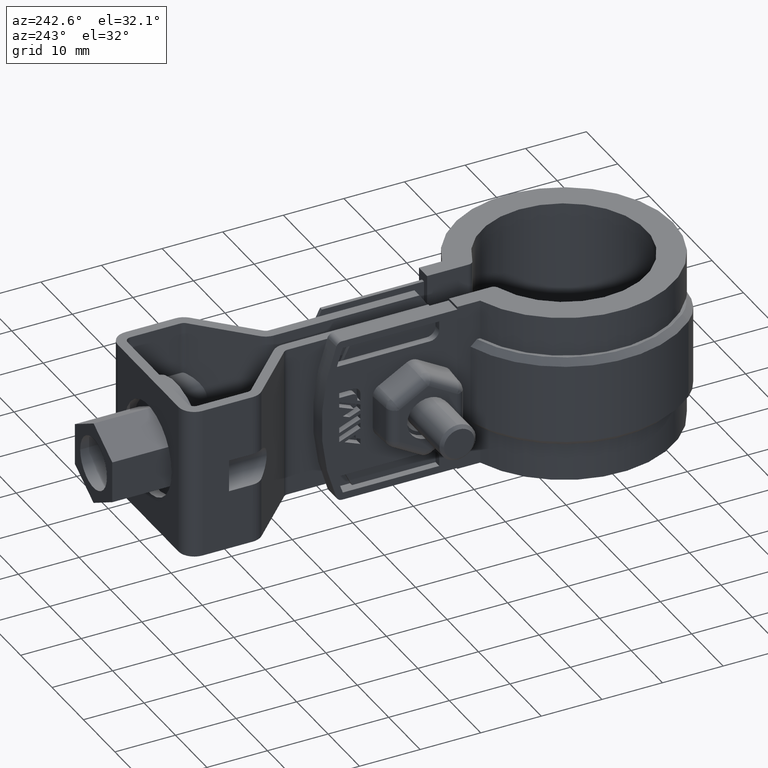
[diagram: clean part render]
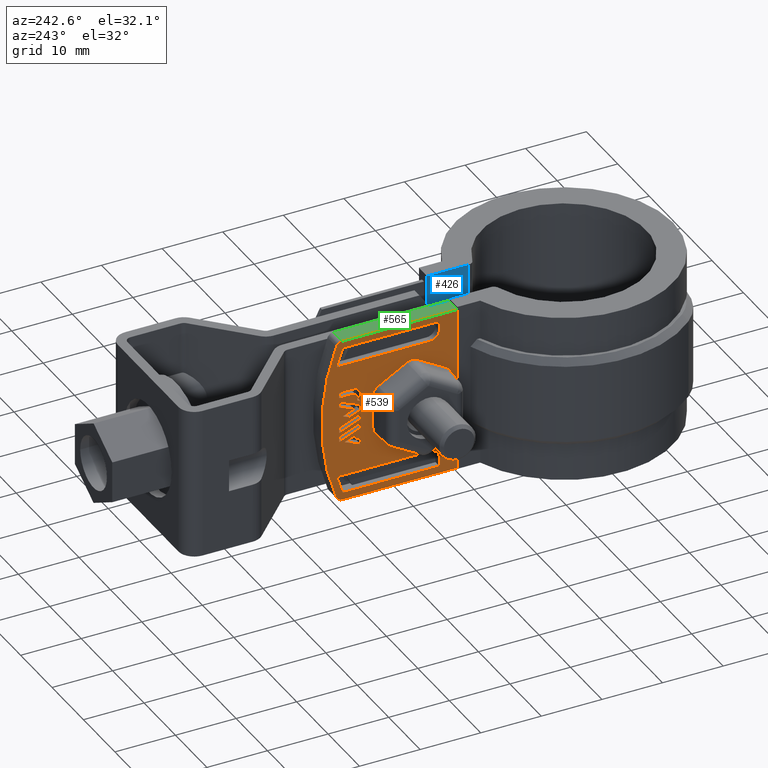
[diagram: same view with three faces highlighted in distinct colors, each labeled with its STEP entity id]
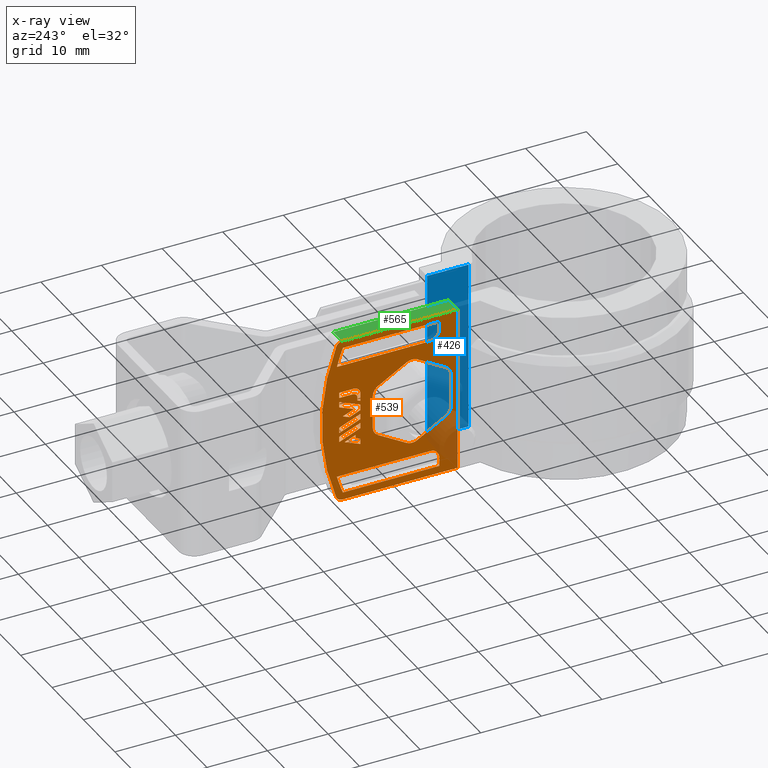
[diagram: x-ray of the same camera — body ghosted, the three highlighted faces saturated]
A machine part, auxiliary view with three faces highlighted in distinct colors.
The next image is the same camera in x-ray (body ghosted, the three faces saturated) — at least one of them is partly hidden behind the body in this view.
Their STEP definitions:

[orange] entity #539 — the highlighted planar face has unit normal (-1, 0, -0).
#539 = ADVANCED_FACE( '', ( #1070, #1071, #1072, #1073, #1074, #1075, #1076, #1077, #1078 ), #1079, .T. );
#1070 = FACE_BOUND( '', #2151, .T. );
#1071 = FACE_BOUND( '', #2152, .T. );
#1072 = FACE_BOUND( '', #2153, .T. );
#1073 = FACE_OUTER_BOUND( '', #2154, .T. );
#1074 = FACE_BOUND( '', #2155, .T. );
#1075 = FACE_BOUND( '', #2156, .T. );
#1076 = FACE_BOUND( '', #2157, .T. );
#1077 = FACE_BOUND( '', #2158, .T. );
#1078 = FACE_BOUND( '', #2159, .T. );
#1079 = PLANE( '', #2160 );
#2151 = EDGE_LOOP( '', ( #4816, #4817, #4818, #4819, #4820 ) );
#2152 = EDGE_LOOP( '', ( #4821, #4822, #4823, #4824 ) );
#2153 = EDGE_LOOP( '', ( #4825, #4826, #4827, #4828, #4829, #4830, #4831, #4832, #4833, #4834, #4835, #4836 ) );
#2154 = EDGE_LOOP( '', ( #4837, #4838, #4839, #4840, #4841, #4842 ) );
#2155 = EDGE_LOOP( '', ( #4843, #4844, #4845, #4846, #4847 ) );
#2156 = EDGE_LOOP( '', ( #4848, #4849, #4850, #4851, #4852 ) );
#2157 = EDGE_LOOP( '', ( #4853, #4854, #4855, #4856, #4857, #4858, #4859, #4860, #4861, #4862, #4863, #4864, #4865, #4866, #4867, #4868, #4869, #4870, #4871, #4872, #4873, #4874, #4875, #4876, #4877, #4878, #4879, #4880, #4881, #4882, #4883, #4884, #4885, #4886, #4887, #4888, #4889, #4890, #4891, #4892 ) );
#2158 = EDGE_LOOP( '', ( #4893, #4894, #4895, #4896, #4897, #4898, #4899 ) );
#2159 = EDGE_LOOP( '', ( #4900, #4901, #4902, #4903 ) );
#2160 = AXIS2_PLACEMENT_3D( '', #4904, #4905, #4906 );
#4816 = ORIENTED_EDGE( '', *, *, #6562, .T. );
#4817 = ORIENTED_EDGE( '', *, *, #6563, .T. );
#4818 = ORIENTED_EDGE( '', *, *, #6564, .T. );
#4819 = ORIENTED_EDGE( '', *, *, #6565, .T. );
#4820 = ORIENTED_EDGE( '', *, *, #6566, .T. );
#4821 = ORIENTED_EDGE( '', *, *, #6567, .T. );
#4822 = ORIENTED_EDGE( '', *, *, #6568, .T. );
#4823 = ORIENTED_EDGE( '', *, *, #6569, .T. );
#4824 = ORIENTED_EDGE( '', *, *, #6570, .T. );
#4825 = ORIENTED_EDGE( '', *, *, #6571, .F. );
#4826 = ORIENTED_EDGE( '', *, *, #6572, .F. );
#4827 = ORIENTED_EDGE( '', *, *, #6573, .F. );
#4828 = ORIENTED_EDGE( '', *, *, #6574, .F. );
#4829 = ORIENTED_EDGE( '', *, *, #6575, .F. );
#4830 = ORIENTED_EDGE( '', *, *, #6576, .F. );
#4831 = ORIENTED_EDGE( '', *, *, #6577, .F. );
#4832 = ORIENTED_EDGE( '', *, *, #6578, .F. );
#4833 = ORIENTED_EDGE( '', *, *, #6579, .F. );
#4834 = ORIENTED_EDGE( '', *, *, #6580, .F. );
#4835 = ORIENTED_EDGE( '', *, *, #6581, .F. );
#4836 = ORIENTED_EDGE( '', *, *, #6582, .F. );
#4837 = ORIENTED_EDGE( '', *, *, #6583, .T. );
#4838 = ORIENTED_EDGE( '', *, *, #6584, .T. );
#4839 = ORIENTED_EDGE( '', *, *, #6585, .T. );
#4840 = ORIENTED_EDGE( '', *, *, #6586, .T. );
#4841 = ORIENTED_EDGE( '', *, *, #6587, .T. );
#4842 = ORIENTED_EDGE( '', *, *, #6588, .T. );
#4843 = ORIENTED_EDGE( '', *, *, #6589, .F. );
#4844 = ORIENTED_EDGE( '', *, *, #6590, .T. );
#4845 = ORIENTED_EDGE( '', *, *, #6591, .T. );
#4846 = ORIENTED_EDGE( '', *, *, #6592, .T. );
#4847 = ORIENTED_EDGE( '', *, *, #6593, .F. );
#4848 = ORIENTED_EDGE( '', *, *, #6594, .F. );
#4849 = ORIENTED_EDGE( '', *, *, #6595, .F. );
#4850 = ORIENTED_EDGE( '', *, *, #6596, .T. );
#4851 = ORIENTED_EDGE( '', *, *, #6597, .T. );
#4852 = ORIENTED_EDGE( '', *, *, #6598, .T. );
#4853 = ORIENTED_EDGE( '', *, *, #6599, .T. );
#4854 = ORIENTED_EDGE( '', *, *, #6600, .T. );
#4855 = ORIENTED_EDGE( '', *, *, #6601, .T. );
#4856 = ORIENTED_EDGE( '', *, *, #6602, .T. );
#4857 = ORIENTED_EDGE( '', *, *, #6603, .T. );
#4858 = ORIENTED_EDGE( '', *, *, #6604, .T. );
#4859 = ORIENTED_EDGE( '', *, *, #6605, .T. );
#4860 = ORIENTED_EDGE( '', *, *, #6606, .T. );
#4861 = ORIENTED_EDGE( '', *, *, #6607, .T. );
#4862 = ORIENTED_EDGE( '', *, *, #6608, .T. );
#4863 = ORIENTED_EDGE( '', *, *, #6609, .T. );
#4864 = ORIENTED_EDGE( '', *, *, #6610, .T. );
#4865 = ORIENTED_EDGE( '', *, *, #6611, .T. );
#4866 = ORIENTED_EDGE( '', *, *, #6612, .T. );
#4867 = ORIENTED_EDGE( '', *, *, #6613, .T. );
#4868 = ORIENTED_EDGE( '', *, *, #6614, .T. );
#4869 = ORIENTED_EDGE( '', *, *, #6615, .T. );
#4870 = ORIENTED_EDGE( '', *, *, #6616, .T. );
#4871 = ORIENTED_EDGE( '', *, *, #6617, .T. );
#4872 = ORIENTED_EDGE( '', *, *, #6618, .T. );
#4873 = ORIENTED_EDGE( '', *, *, #6619, .T. );
#4874 = ORIENTED_EDGE( '', *, *, #6620, .T. );
#4875 = ORIENTED_EDGE( '', *, *, #6621, .T. );
#4876 = ORIENTED_EDGE( '', *, *, #6622, .T. );
#4877 = ORIENTED_EDGE( '', *, *, #6623, .T. );
#4878 = ORIENTED_EDGE( '', *, *, #6624, .T. );
#4879 = ORIENTED_EDGE( '', *, *, #6625, .T. );
#4880 = ORIENTED_EDGE( '', *, *, #6626, .T. );
#4881 = ORIENTED_EDGE( '', *, *, #6627, .T. );
#4882 = ORIENTED_EDGE( '', *, *, #6628, .T. );
#4883 = ORIENTED_EDGE( '', *, *, #6629, .T. );
#4884 = ORIENTED_EDGE( '', *, *, #6630, .T. );
#4885 = ORIENTED_EDGE( '', *, *, #6631, .T. );
#4886 = ORIENTED_EDGE( '', *, *, #6632, .T. );
#4887 = ORIENTED_EDGE( '', *, *, #6633, .T. );
#4888 = ORIENTED_EDGE( '', *, *, #6634, .T. );
#4889 = ORIENTED_EDGE( '', *, *, #6635, .T. );
#4890 = ORIENTED_EDGE( '', *, *, #6636, .T. );
#4891 = ORIENTED_EDGE( '', *, *, #6637, .T. );
#4892 = ORIENTED_EDGE( '', *, *, #6638, .T. );
#4893 = ORIENTED_EDGE( '', *, *, #6639, .T. );
#4894 = ORIENTED_EDGE( '', *, *, #6640, .T. );
#4895 = ORIENTED_EDGE( '', *, *, #6641, .T. );
#4896 = ORIENTED_EDGE( '', *, *, #6642, .T. );
#4897 = ORIENTED_EDGE( '', *, *, #6643, .T. );
#4898 = ORIENTED_EDGE( '', *, *, #6644, .T. );
#4899 = ORIENTED_EDGE( '', *, *, #6645, .T. );
#4900 = ORIENTED_EDGE( '', *, *, #6646, .T. );
#4901 = ORIENTED_EDGE( '', *, *, #6647, .T. );
#4902 = ORIENTED_EDGE( '', *, *, #6558, .T. );
#4903 = ORIENTED_EDGE( '', *, *, #6561, .T. );
#4904 = CARTESIAN_POINT( '', ( -6.30000000000003, 6.82194656581947, -12.5000000000001 ) );
#4905 = DIRECTION( '', ( -1.00000000000000, 7.94615700011737E-017, -6.23565794846549E-020 ) );
#4906 = DIRECTION( '', ( 7.94615700011737E-017, 1.00000000000000, 1.27307474615306E-016 ) );
#6558 = EDGE_CURVE( '', #7891, #7889, #7892, .T. );
#6561 = EDGE_CURVE( '', #7889, #7894, #7896, .T. );
#6562 = EDGE_CURVE( '', #7897, #7898, #7899, .T. );
#6563 = EDGE_CURVE( '', #7898, #7900, #7901, .T. );
#6564 = EDGE_CURVE( '', #7900, #7902, #7903, .T. );
#6565 = EDGE_CURVE( '', #7902, #7904, #7905, .T. );
#6566 = EDGE_CURVE( '', #7904, #7897, #7906, .T. );
#6567 = EDGE_CURVE( '', #7907, #7908, #7909, .T. );
#6568 = EDGE_CURVE( '', #7908, #7910, #7911, .T. );
#6569 = EDGE_CURVE( '', #7910, #7912, #7913, .T. );
#6570 = EDGE_CURVE( '', #7912, #7907, #7914, .T. );
#6571 = EDGE_CURVE( '', #7915, #7916, #7917, .F. );
#6572 = EDGE_CURVE( '', #7918, #7915, #7919, .T. );
#6573 = EDGE_CURVE( '', #7920, #7918, #7921, .F. );
#6574 = EDGE_CURVE( '', #7922, #7920, #7923, .T. );
#6575 = EDGE_CURVE( '', #7924, #7922, #7925, .F. );
#6576 = EDGE_CURVE( '', #7926, #7924, #7927, .T. );
#6577 = EDGE_CURVE( '', #7928, #7926, #7929, .F. );
#6578 = EDGE_CURVE( '', #7930, #7928, #7931, .T. );
#6579 = EDGE_CURVE( '', #7932, #7930, #7933, .F. );
#6580 = EDGE_CURVE( '', #7934, #7932, #7935, .T. );
#6581 = EDGE_CURVE( '', #7936, #7934, #7937, .F. );
#6582 = EDGE_CURVE( '', #7916, #7936, #7938, .T. );
#6583 = EDGE_CURVE( '', #7939, #7940, #7941, .T. );
#6584 = EDGE_CURVE( '', #7940, #7942, #7943, .T. );
#6585 = EDGE_CURVE( '', #7942, #7944, #7945, .T. );
#6586 = EDGE_CURVE( '', #7944, #7946, #7947, .T. );
#6587 = EDGE_CURVE( '', #7946, #7948, #7949, .T. );
#6588 = EDGE_CURVE( '', #7948, #7939, #7950, .T. );
#6589 = EDGE_CURVE( '', #7951, #7952, #7953, .T. );
#6590 = EDGE_CURVE( '', #7951, #7954, #7955, .T. );
#6591 = EDGE_CURVE( '', #7954, #7956, #7957, .T. );
#6592 = EDGE_CURVE( '', #7956, #7958, #7959, .T. );
#6593 = EDGE_CURVE( '', #7952, #7958, #7960, .T. );
#6594 = EDGE_CURVE( '', #7961, #7962, #7963, .T. );
#6595 = EDGE_CURVE( '', #7964, #7961, #7965, .T. );
#6596 = EDGE_CURVE( '', #7964, #7966, #7967, .T. );
#6597 = EDGE_CURVE( '', #7966, #7968, #7969, .T. );
#6598 = EDGE_CURVE( '', #7968, #7962, #7970, .T. );
#6599 = EDGE_CURVE( '', #7971, #7972, #7973, .T. );
#6600 = EDGE_CURVE( '', #7972, #7974, #7975, .T. );
#6601 = EDGE_CURVE( '', #7974, #7976, #7977, .T. );
#6602 = EDGE_CURVE( '', #7976, #7978, #7979, .T. );
#6603 = EDGE_CURVE( '', #7978, #7980, #7981, .T. );
#6604 = EDGE_CURVE( '', #7980, #7982, #7983, .T. );
#6605 = EDGE_CURVE( '', #7982, #7984, #7985, .T. );
#6606 = EDGE_CURVE( '', #7984, #7986, #7987, .T. );
#6607 = EDGE_CURVE( '', #7986, #7988, #7989, .T. );
#6608 = EDGE_CURVE( '', #7988, #7990, #7991, .T. );
#6609 = EDGE_CURVE( '', #7990, #7992, #7993, .T. );
#6610 = EDGE_CURVE( '', #7992, #7994, #7995, .T. );
#6611 = EDGE_CURVE( '', #7994, #7996, #7997, .T. );
#6612 = EDGE_CURVE( '', #7996, #7998, #7999, .T. );
#6613 = EDGE_CURVE( '', #7998, #8000, #8001, .T. );
#6614 = EDGE_CURVE( '', #8000, #8002, #8003, .T. );
#6615 = EDGE_CURVE( '', #8002, #8004, #8005, .T. );
#6616 = EDGE_CURVE( '', #8004, #8006, #8007, .T. );
#6617 = EDGE_CURVE( '', #8006, #8008, #8009, .T. );
#6618 = EDGE_CURVE( '', #8008, #8010, #8011, .T. );
#6619 = EDGE_CURVE( '', #8010, #8012, #8013, .T. );
#6620 = EDGE_CURVE( '', #8012, #8014, #8015, .T. );
#6621 = EDGE_CURVE( '', #8014, #8016, #8017, .T. );
#6622 = EDGE_CURVE( '', #8016, #8018, #8019, .T. );
#6623 = EDGE_CURVE( '', #8018, #8020, #8021, .T. );
#6624 = EDGE_CURVE( '', #8020, #8022, #8023, .T. );
#6625 = EDGE_CURVE( '', #8022, #8024, #8025, .T. );
#6626 = EDGE_CURVE( '', #8024, #8026, #8027, .T. );
#6627 = EDGE_CURVE( '', #8026, #8028, #8029, .T. );
#6628 = EDGE_CURVE( '', #8028, #8030, #8031, .T. );
#6629 = EDGE_CURVE( '', #8030, #8032, #8033, .T. );
#6630 = EDGE_CURVE( '', #8032, #8034, #8035, .T. );
#6631 = EDGE_CURVE( '', #8034, #8036, #8037, .T. );
#6632 = EDGE_CURVE( '', #8036, #8038, #8039, .T. );
#6633 = EDGE_CURVE( '', #8038, #8040, #8041, .T. );
#6634 = EDGE_CURVE( '', #8040, #8042, #8043, .T. );
#6635 = EDGE_CURVE( '', #8042, #8044, #8045, .T. );
#6636 = EDGE_CURVE( '', #8044, #8046, #8047, .T. );
#6637 = EDGE_CURVE( '', #8046, #8048, #8049, .T. );
#6638 = EDGE_CURVE( '', #8048, #7971, #8050, .F. );
#6639 = EDGE_CURVE( '', #8051, #8052, #8053, .T. );
#6640 = EDGE_CURVE( '', #8052, #8054, #8055, .T. );
#6641 = EDGE_CURVE( '', #8054, #8056, #8057, .T. );
#6642 = EDGE_CURVE( '', #8056, #8058, #8059, .T. );
#6643 = EDGE_CURVE( '', #8058, #8060, #8061, .T. );
#6644 = EDGE_CURVE( '', #8060, #8062, #8063, .T. );
#6645 = EDGE_CURVE( '', #8062, #8051, #8064, .T. );
#6646 = EDGE_CURVE( '', #7894, #8065, #8066, .T. );
#6647 = EDGE_CURVE( '', #8065, #7891, #8067, .T. );
#7889 = VERTEX_POINT( '', #11193 );
#7891 = VERTEX_POINT( '', #11196 );
#7892 = LINE( '', #11197, #11198 );
#7894 = VERTEX_POINT( '', #11201 );
#7896 = LINE( '', #11204, #11205 );
#7897 = VERTEX_POINT( '', #11206 );
#7898 = VERTEX_POINT( '', #11207 );
#7899 = LINE( '', #11208, #11209 );
#7900 = VERTEX_POINT( '', #11210 );
#7901 = LINE( '', #11211, #11212 );
#7902 = VERTEX_POINT( '', #11213 );
#7903 = LINE( '', #11214, #11215 );
#7904 = VERTEX_POINT( '', #11216 );
#7905 = LINE( '', #11217, #11218 );
#7906 = LINE( '', #11219, #11220 );
#7907 = VERTEX_POINT( '', #11221 );
#7908 = VERTEX_POINT( '', #11222 );
#7909 = LINE( '', #11223, #11224 );
#7910 = VERTEX_POINT( '', #11225 );
#7911 = LINE( '', #11226, #11227 );
#7912 = VERTEX_POINT( '', #11228 );
#7913 = LINE( '', #11229, #11230 );
#7914 = LINE( '', #11231, #11232 );
#7915 = VERTEX_POINT( '', #11233 );
#7916 = VERTEX_POINT( '', #11234 );
#7917 = LINE( '', #11235, #11236 );
#7918 = VERTEX_POINT( '', #11237 );
#7919 = CIRCLE( '', #11238, 1.77252045227181 );
#7920 = VERTEX_POINT( '', #11239 );
#7921 = LINE( '', #11240, #11241 );
#7922 = VERTEX_POINT( '', #11242 );
#7923 = CIRCLE( '', #11243, 1.77252045227181 );
#7924 = VERTEX_POINT( '', #11244 );
#7925 = LINE( '', #11245, #11246 );
#7926 = VERTEX_POINT( '', #11247 );
#7927 = CIRCLE( '', #11248, 1.77252045227182 );
#7928 = VERTEX_POINT( '', #11249 );
#7929 = LINE( '', #11250, #11251 );
#7930 = VERTEX_POINT( '', #11252 );
#7931 = CIRCLE( '', #11253, 1.77252045227182 );
#7932 = VERTEX_POINT( '', #11254 );
#7933 = LINE( '', #11255, #11256 );
#7934 = VERTEX_POINT( '', #11257 );
#7935 = CIRCLE( '', #11258, 1.77252045227181 );
#7936 = VERTEX_POINT( '', #11259 );
#7937 = LINE( '', #11260, #11261 );
#7938 = CIRCLE( '', #11262, 1.77252045227182 );
#7939 = VERTEX_POINT( '', #11263 );
#7940 = VERTEX_POINT( '', #11264 );
#7941 = CIRCLE( '', #11265, 1.00000000000000 );
#7942 = VERTEX_POINT( '', #11266 );
#7943 = LINE( '', #11267, #11268 );
#7944 = VERTEX_POINT( '', #11269 );
#7945 = LINE( '', #11270, #11271 );
#7946 = VERTEX_POINT( '', #11272 );
#7947 = LINE( '', #11273, #11274 );
#7948 = VERTEX_POINT( '', #11275 );
#7949 = CIRCLE( '', #11276, 1.00000000000000 );
#7950 = CIRCLE( '', #11277, 36.4000000000000 );
#7951 = VERTEX_POINT( '', #11278 );
#7952 = VERTEX_POINT( '', #11279 );
#7953 = CIRCLE( '', #11280, 35.2000000000000 );
#7954 = VERTEX_POINT( '', #11281 );
#7955 = LINE( '', #11282, #11283 );
#7956 = VERTEX_POINT( '', #11284 );
#7957 = CIRCLE( '', #11285, 1.50000000000000 );
#7958 = VERTEX_POINT( '', #11286 );
#7959 = LINE( '', #11287, #11288 );
#7960 = LINE( '', #11289, #11290 );
#7961 = VERTEX_POINT( '', #11291 );
#7962 = VERTEX_POINT( '', #11292 );
#7963 = CIRCLE( '', #11293, 35.2000000000000 );
#7964 = VERTEX_POINT( '', #11294 );
#7965 = LINE( '', #11295, #11296 );
#7966 = VERTEX_POINT( '', #11297 );
#7967 = LINE( '', #11298, #11299 );
#7968 = VERTEX_POINT( '', #11300 );
#7969 = CIRCLE( '', #11301, 1.50000000000000 );
#7970 = LINE( '', #11302, #11303 );
#7971 = VERTEX_POINT( '', #11304 );
#7972 = VERTEX_POINT( '', #11305 );
#7973 = LINE( '', #11306, #11307 );
#7974 = VERTEX_POINT( '', #11308 );
#7975 = LINE( '', #11309, #11310 );
#7976 = VERTEX_POINT( '', #11311 );
#7977 = LINE( '', #11312, #11313 );
#7978 = VERTEX_POINT( '', #11314 );
#7979 = LINE( '', #11315, #11316 );
#7980 = VERTEX_POINT( '', #11317 );
#7981 = LINE( '', #11318, #11319 );
#7982 = VERTEX_POINT( '', #11320 );
#7983 = LINE( '', #11321, #11322 );
#7984 = VERTEX_POINT( '', #11323 );
#7985 = LINE( '', #11324, #11325 );
#7986 = VERTEX_POINT( '', #11326 );
#7987 = LINE( '', #11327, #11328 );
#7988 = VERTEX_POINT( '', #11329 );
#7989 = LINE( '', #11330, #11331 );
#7990 = VERTEX_POINT( '', #11332 );
#7991 = LINE( '', #11333, #11334 );
#7992 = VERTEX_POINT( '', #11335 );
#7993 = LINE( '', #11336, #11337 );
#7994 = VERTEX_POINT( '', #11338 );
#7995 = LINE( '', #11339, #11340 );
#7996 = VERTEX_POINT( '', #11341 );
#7997 = LINE( '', #11342, #11343 );
#7998 = VERTEX_POINT( '', #11344 );
#7999 = LINE( '', #11345, #11346 );
#8000 = VERTEX_POINT( '', #11347 );
#8001 = LINE( '', #11348, #11349 );
#8002 = VERTEX_POINT( '', #11350 );
#8003 = LINE( '', #11351, #11352 );
#8004 = VERTEX_POINT( '', #11353 );
#8005 = LINE( '', #11354, #11355 );
#8006 = VERTEX_POINT( '', #11356 );
#8007 = LINE( '', #11357, #11358 );
#8008 = VERTEX_POINT( '', #11359 );
#8009 = LINE( '', #11360, #11361 );
#8010 = VERTEX_POINT( '', #11362 );
#8011 = LINE( '', #11363, #11364 );
#8012 = VERTEX_POINT( '', #11365 );
#8013 = LINE( '', #11366, #11367 );
#8014 = VERTEX_POINT( '', #11368 );
#8015 = LINE( '', #11369, #11370 );
#8016 = VERTEX_POINT( '', #11371 );
#8017 = LINE( '', #11372, #11373 );
#8018 = VERTEX_POINT( '', #11374 );
#8019 = LINE( '', #11375, #11376 );
#8020 = VERTEX_POINT( '', #11377 );
#8021 = LINE( '', #11378, #11379 );
#8022 = VERTEX_POINT( '', #11380 );
#8023 = LINE( '', #11381, #11382 );
#8024 = VERTEX_POINT( '', #11383 );
#8025 = LINE( '', #11384, #11385 );
#8026 = VERTEX_POINT( '', #11386 );
#8027 = LINE( '', #11387, #11388 );
#8028 = VERTEX_POINT( '', #11389 );
#8029 = LINE( '', #11390, #11391 );
#8030 = VERTEX_POINT( '', #11392 );
#8031 = LINE( '', #11393, #11394 );
#8032 = VERTEX_POINT( '', #11395 );
#8033 = LINE( '', #11396, #11397 );
#8034 = VERTEX_POINT( '', #11398 );
#8035 = LINE( '', #11399, #11400 );
#8036 = VERTEX_POINT( '', #11401 );
#8037 = LINE( '', #11402, #11403 );
#8038 = VERTEX_POINT( '', #11404 );
#8039 = LINE( '', #11405, #11406 );
#8040 = VERTEX_POINT( '', #11407 );
#8041 = LINE( '', #11408, #11409 );
#8042 = VERTEX_POINT( '', #11410 );
#8043 = LINE( '', #11411, #11412 );
#8044 = VERTEX_POINT( '', #11413 );
#8045 = LINE( '', #11414, #11415 );
#8046 = VERTEX_POINT( '', #11416 );
#8047 = LINE( '', #11417, #11418 );
#8048 = VERTEX_POINT( '', #11419 );
#8049 = LINE( '', #11420, #11421 );
#8050 = CIRCLE( '', #11422, 1.16712912069193 );
#8051 = VERTEX_POINT( '', #11423 );
#8052 = VERTEX_POINT( '', #11424 );
#8053 = LINE( '', #11425, #11426 );
#8054 = VERTEX_POINT( '', #11427 );
#8055 = LINE( '', #11428, #11429 );
#8056 = VERTEX_POINT( '', #11430 );
#8057 = LINE( '', #11431, #11432 );
#8058 = VERTEX_POINT( '', #11433 );
#8059 = LINE( '', #11434, #11435 );
#8060 = VERTEX_POINT( '', #11436 );
#8061 = LINE( '', #11437, #11438 );
#8062 = VERTEX_POINT( '', #11439 );
#8063 = LINE( '', #11440, #11441 );
#8064 = LINE( '', #11442, #11443 );
#8065 = VERTEX_POINT( '', #11444 );
#8066 = LINE( '', #11445, #11446 );
#8067 = LINE( '', #11447, #11448 );
#11193 = CARTESIAN_POINT( '', ( -6.30000000000003, 40.3240775025942, -16.0992186100001 ) );
#11196 = CARTESIAN_POINT( '', ( -6.30000000000003, 36.8256386785941, -14.6858050040001 ) );
#11197 = CARTESIAN_POINT( '', ( -6.30000000000003, 10.2729492232332, -3.95818207269807 ) );
#11198 = VECTOR( '', #12765, 1000.00000000000 );
#11201 = CARTESIAN_POINT( '', ( -6.30000000000003, 40.3240775025942, -15.1954619120001 ) );
#11204 = CARTESIAN_POINT( '', ( -6.30000000000003, 40.3240775025942, -12.5000000000001 ) );
#11205 = VECTOR( '', #12768, 1000.00000000000 );
#11206 = CARTESIAN_POINT( '', ( -6.30000000000003, 37.6336445825941, -15.6427310000001 ) );
#11207 = CARTESIAN_POINT( '', ( -6.30000000000003, 37.6336445825941, -16.2049013520001 ) );
#11208 = CARTESIAN_POINT( '', ( -6.30000000000003, 37.6336445825941, -12.5000000000001 ) );
#11209 = VECTOR( '', #12769, 1000.00000000000 );
#11210 = CARTESIAN_POINT( '', ( -6.30000000000003, 36.8256386785941, -16.5315944440001 ) );
#11211 = CARTESIAN_POINT( '', ( -6.30000000000003, 12.4386584504484, -26.3917426630107 ) );
#11212 = VECTOR( '', #12770, 1000.00000000000 );
#11213 = CARTESIAN_POINT( '', ( -6.30000000000003, 36.8256386785941, -17.4353519200001 ) );
#11214 = CARTESIAN_POINT( '', ( -6.30000000000003, 36.8256386785941, -12.5000000000001 ) );
#11215 = VECTOR( '', #12771, 1000.00000000000 );
#11216 = CARTESIAN_POINT( '', ( -6.30000000000003, 39.4486757925941, -16.3757128080001 ) );
#11217 = CARTESIAN_POINT( '', ( -6.30000000000003, 12.7454668365893, -27.1631181690099 ) );
#11218 = VECTOR( '', #12772, 1000.00000000000 );
#11219 = CARTESIAN_POINT( '', ( -6.30000000000003, 10.0511252232941, -4.50381239750712 ) );
#11220 = VECTOR( '', #12773, 1000.00000000000 );
#11221 = CARTESIAN_POINT( '', ( -6.30000000000003, 40.3240775025942, -14.5449628860001 ) );
#11222 = CARTESIAN_POINT( '', ( -6.30000000000003, 40.3240775025942, -13.6409432240001 ) );
#11223 = CARTESIAN_POINT( '', ( -6.30000000000003, 40.3240775025942, -12.5000000000001 ) );
#11224 = VECTOR( '', #12774, 1000.00000000000 );
#11225 = CARTESIAN_POINT( '', ( -6.30000000000003, 36.8256386785941, -12.2273304500001 ) );
#11226 = CARTESIAN_POINT( '', ( -6.30000000000003, 11.1278582450275, -1.84363860576129 ) );
#11227 = VECTOR( '', #12775, 1000.00000000000 );
#11228 = CARTESIAN_POINT( '', ( -6.30000000000003, 36.8256386785941, -13.1313508900001 ) );
#11229 = CARTESIAN_POINT( '', ( -6.30000000000003, 36.8256386785941, -12.5000000000001 ) );
#11230 = VECTOR( '', #12776, 1000.00000000000 );
#11231 = CARTESIAN_POINT( '', ( -6.30000000000003, 10.8138374178529, -2.62077856056619 ) );
#11232 = VECTOR( '', #12777, 1000.00000000000 );
#11233 = CARTESIAN_POINT( '', ( -6.30000000000003, 34.7944670180912, -9.78645373480883 ) );
#11234 = CARTESIAN_POINT( '', ( -6.30000000000003, 34.7944670180912, -15.2135462651913 ) );
#11235 = CARTESIAN_POINT( '', ( -6.30000000000003, 34.7944670180912, -15.2135462651913 ) );
#11236 = VECTOR( '', #12778, 1000.00000000000 );
#11237 = CARTESIAN_POINT( '', ( -6.30000000000003, 33.9082067919553, -8.25140599441396 ) );
#11238 = AXIS2_PLACEMENT_3D( '', #12779, #12780, #12781 );
#11239 = CARTESIAN_POINT( '', ( -6.30000000000003, 29.2082067919553, -5.53785972922273 ) );
#11240 = CARTESIAN_POINT( '', ( -6.30000000000003, 36.2582067919553, -9.60817912700957 ) );
#11241 = VECTOR( '', #12782, 1000.00000000000 );
#11242 = CARTESIAN_POINT( '', ( -6.30000000000003, 27.4356863396835, -5.53785972922272 ) );
#11243 = AXIS2_PLACEMENT_3D( '', #12783, #12784, #12785 );
#11244 = CARTESIAN_POINT( '', ( -6.30000000000003, 22.7356863396835, -8.25140599441396 ) );
#11245 = CARTESIAN_POINT( '', ( -6.30000000000003, 27.4356863396835, -5.53785972922272 ) );
#11246 = VECTOR( '', #12786, 1000.00000000000 );
#11247 = CARTESIAN_POINT( '', ( -6.30000000000003, 21.8494261135476, -9.78645373480884 ) );
#11248 = AXIS2_PLACEMENT_3D( '', #12787, #12788, #12789 );
#11249 = CARTESIAN_POINT( '', ( -6.30000000000003, 21.8494261135476, -15.2135462651913 ) );
#11250 = CARTESIAN_POINT( '', ( -6.30000000000003, 21.8494261135476, -15.2135462651913 ) );
#11251 = VECTOR( '', #12790, 1000.00000000000 );
#11252 = CARTESIAN_POINT( '', ( -6.30000000000003, 22.7356863396835, -16.7485940055862 ) );
#11253 = AXIS2_PLACEMENT_3D( '', #12791, #12792, #12793 );
#11254 = CARTESIAN_POINT( '', ( -6.30000000000003, 27.4356863396835, -19.4621402707774 ) );
#11255 = CARTESIAN_POINT( '', ( -6.30000000000003, 29.7856863396835, -20.8189134033730 ) );
#11256 = VECTOR( '', #12794, 1000.00000000000 );
#11257 = CARTESIAN_POINT( '', ( -6.30000000000003, 29.2082067919553, -19.4621402707774 ) );
#11258 = AXIS2_PLACEMENT_3D( '', #12795, #12796, #12797 );
#11259 = CARTESIAN_POINT( '', ( -6.30000000000003, 33.9082067919553, -16.7485940055862 ) );
#11260 = CARTESIAN_POINT( '', ( -6.30000000000003, 33.9082067919553, -16.7485940055862 ) );
#11261 = VECTOR( '', #12798, 1000.00000000000 );
#11262 = AXIS2_PLACEMENT_3D( '', #12799, #12800, #12801 );
#11263 = CARTESIAN_POINT( '', ( -6.30000000000003, 40.7988337686200, -25.5587570621470 ) );
#11264 = CARTESIAN_POINT( '', ( -6.30000000000003, 39.8654028015101, -26.2000000000001 ) );
#11265 = AXIS2_PLACEMENT_3D( '', #12802, #12803, #12804 );
#11266 = CARTESIAN_POINT( '', ( -6.30000000000003, 20.8219465658195, -26.2000000000001 ) );
#11267 = CARTESIAN_POINT( '', ( -6.30000000000003, 23.8219465658195, -26.2000000000001 ) );
#11268 = VECTOR( '', #12805, 1000.00000000000 );
#11269 = CARTESIAN_POINT( '', ( -6.30000000000003, 20.8219465658195, 1.19999999999988 ) );
#11270 = CARTESIAN_POINT( '', ( -6.30000000000003, 20.8219465658195, -26.2000000000001 ) );
#11271 = VECTOR( '', #12806, 1000.00000000000 );
#11272 = CARTESIAN_POINT( '', ( -6.30000000000003, 39.8654028015101, 1.19999999999991 ) );
#11273 = CARTESIAN_POINT( '', ( -6.30000000000003, 20.8219465658195, 1.19999999999990 ) );
#11274 = VECTOR( '', #12807, 1000.00000000000 );
#11275 = CARTESIAN_POINT( '', ( -6.30000000000003, 40.7988337686200, 0.558757062146803 ) );
#11276 = AXIS2_PLACEMENT_3D( '', #12808, #12809, #12810 );
#11277 = AXIS2_PLACEMENT_3D( '', #12811, #12812, #12813 );
#11278 = CARTESIAN_POINT( '', ( -6.30000000000003, 40.7157513094596, -22.0000000000001 ) );
#11279 = CARTESIAN_POINT( '', ( -6.30000000000003, 39.7277211350345, -25.0000000000001 ) );
#11280 = AXIS2_PLACEMENT_3D( '', #12814, #12815, #12816 );
#11281 = CARTESIAN_POINT( '', ( -6.30000000000003, 25.3219465658195, -22.0000000000001 ) );
#11282 = CARTESIAN_POINT( '', ( -6.30000000000003, 41.5458576358588, -22.0000000000001 ) );
#11283 = VECTOR( '', #12817, 1000.00000000000 );
#11284 = CARTESIAN_POINT( '', ( -6.30000000000003, 23.8219465658195, -23.5000000000001 ) );
#11285 = AXIS2_PLACEMENT_3D( '', #12818, #12819, #12820 );
#11286 = CARTESIAN_POINT( '', ( -6.30000000000003, 23.8219465658195, -25.0000000000001 ) );
#11287 = CARTESIAN_POINT( '', ( -6.30000000000003, 23.8219465658195, -23.5000000000001 ) );
#11288 = VECTOR( '', #12821, 1000.00000000000 );
#11289 = CARTESIAN_POINT( '', ( -6.30000000000003, 39.5136886423745, -25.0000000000001 ) );
#11290 = VECTOR( '', #12822, 1000.00000000000 );
#11291 = CARTESIAN_POINT( '', ( -6.30000000000003, 39.7277211350345, -8.92319776766368E-014 ) );
#11292 = CARTESIAN_POINT( '', ( -6.30000000000003, 40.7157513094596, -3.00000000000009 ) );
#11293 = AXIS2_PLACEMENT_3D( '', #12823, #12824, #12825 );
#11294 = CARTESIAN_POINT( '', ( -6.30000000000003, 23.8219465658195, -8.12430943602555E-014 ) );
#11295 = CARTESIAN_POINT( '', ( -6.30000000000003, 20.8219465658195, -8.16767752292497E-014 ) );
#11296 = VECTOR( '', #12826, 1000.00000000000 );
#11297 = CARTESIAN_POINT( '', ( -6.30000000000003, 23.8219465658195, -1.50000000000010 ) );
#11298 = CARTESIAN_POINT( '', ( -6.30000000000003, 23.8219465658195, 1.19999999999989 ) );
#11299 = VECTOR( '', #12827, 1000.00000000000 );
#11300 = CARTESIAN_POINT( '', ( -6.30000000000003, 25.3219465658195, -3.00000000000010 ) );
#11301 = AXIS2_PLACEMENT_3D( '', #12828, #12829, #12830 );
#11302 = CARTESIAN_POINT( '', ( -6.30000000000003, 25.3219465658195, -3.00000000000010 ) );
#11303 = VECTOR( '', #12831, 1000.00000000000 );
#11304 = CARTESIAN_POINT( '', ( -6.30000000000003, 36.8256386857327, -8.74297971174872 ) );
#11305 = CARTESIAN_POINT( '', ( -6.30000000000003, 36.8256386785941, -9.97073444800008 ) );
#11306 = CARTESIAN_POINT( '', ( -6.30000000000003, 36.8256386638881, -12.5000001744516 ) );
#11307 = VECTOR( '', #12832, 1000.00000000000 );
#11308 = CARTESIAN_POINT( '', ( -6.30000000000003, 37.3343783245941, -9.76519073800008 ) );
#11309 = CARTESIAN_POINT( '', ( -6.30000000000003, 10.1538654953900, -20.7468067581854 ) );
#11310 = VECTOR( '', #12833, 1000.00000000000 );
#11311 = CARTESIAN_POINT( '', ( -6.30000000000003, 37.3343783245941, -9.26826424400009 ) );
#11312 = CARTESIAN_POINT( '', ( -6.30000000000003, 37.3343783245941, -12.5000000000001 ) );
#11313 = VECTOR( '', #12834, 1000.00000000000 );
#11314 = CARTESIAN_POINT( '', ( -6.30000000000003, 37.3350754125942, -9.23547076600008 ) );
#11315 = CARTESIAN_POINT( '', ( -6.30000000000003, 37.2519316318146, -13.1468474441683 ) );
#11316 = VECTOR( '', #12835, 1000.00000000000 );
#11317 = CARTESIAN_POINT( '', ( -6.30000000000003, 37.3371588965942, -9.20269440400009 ) );
#11318 = CARTESIAN_POINT( '', ( -6.30000000000003, 37.0055964764051, -14.4186739410087 ) );
#11319 = VECTOR( '', #12836, 1000.00000000000 );
#11320 = CARTESIAN_POINT( '', ( -6.30000000000003, 37.3406178845941, -9.17002851800009 ) );
#11321 = CARTESIAN_POINT( '', ( -6.30000000000003, 36.6535157919146, -15.6588624283455 ) );
#11322 = VECTOR( '', #12837, 1000.00000000000 );
#11323 = CARTESIAN_POINT( '', ( -6.30000000000003, 37.3454407065941, -9.13756569000008 ) );
#11324 = CARTESIAN_POINT( '', ( -6.30000000000003, 36.1975421747579, -16.8641690356071 ) );
#11325 = VECTOR( '', #12838, 1000.00000000000 );
#11326 = CARTESIAN_POINT( '', ( -6.30000000000003, 37.3516156925941, -9.10540005800007 ) );
#11327 = CARTESIAN_POINT( '', ( -6.30000000000003, 35.6379460164203, -18.0319414579949 ) );
#11328 = VECTOR( '', #12839, 1000.00000000000 );
#11329 = CARTESIAN_POINT( '', ( -6.30000000000003, 37.3605175685941, -9.06837192600009 ) );
#11330 = CARTESIAN_POINT( '', ( -6.30000000000003, 34.9120246858663, -19.2530922773816 ) );
#11331 = VECTOR( '', #12840, 1000.00000000000 );
#11332 = CARTESIAN_POINT( '', ( -6.30000000000003, 37.3712601925941, -9.03175224400008 ) );
#11333 = CARTESIAN_POINT( '', ( -6.30000000000003, 34.0137525515815, -20.4768947088621 ) );
#11334 = VECTOR( '', #12841, 1000.00000000000 );
#11335 = CARTESIAN_POINT( '', ( -6.30000000000003, 37.3837867705941, -8.99566860400008 ) );
#11336 = CARTESIAN_POINT( '', ( -6.30000000000003, 33.0110427929534, -21.5916480886852 ) );
#11337 = VECTOR( '', #12842, 1000.00000000000 );
#11338 = CARTESIAN_POINT( '', ( -6.30000000000003, 37.3980397305941, -8.96024704200008 ) );
#11339 = CARTESIAN_POINT( '', ( -6.30000000000003, 31.9114581715475, -22.5955402626232 ) );
#11340 = VECTOR( '', #12843, 1000.00000000000 );
#11341 = CARTESIAN_POINT( '', ( -6.30000000000003, 37.4139615005941, -8.92561592800008 ) );
#11342 = CARTESIAN_POINT( '', ( -6.30000000000003, 30.7193563385110, -23.4869137330244 ) );
#11343 = VECTOR( '', #12844, 1000.00000000000 );
#11344 = CARTESIAN_POINT( '', ( -6.30000000000003, 37.4314945085941, -8.89190129800009 ) );
#11345 = CARTESIAN_POINT( '', ( -6.30000000000003, 29.4386103782510, -24.2616046077495 ) );
#11346 = VECTOR( '', #12845, 1000.00000000000 );
#11347 = CARTESIAN_POINT( '', ( -6.30000000000003, 37.4505804045941, -8.85923152200008 ) );
#11348 = CARTESIAN_POINT( '', ( -6.30000000000003, 28.0712804574998, -24.9139993101260 ) );
#11349 = VECTOR( '', #12846, 1000.00000000000 );
#11350 = CARTESIAN_POINT( '', ( -6.30000000000003, 37.4713491145942, -8.82742610400008 ) );
#11351 = CARTESIAN_POINT( '', ( -6.30000000000003, 26.6279233264895, -25.4331608724383 ) );
#11352 = VECTOR( '', #12847, 1000.00000000000 );
#11353 = CARTESIAN_POINT( '', ( -6.30000000000003, 37.4936994985941, -8.79662508400008 ) );
#11354 = CARTESIAN_POINT( '', ( -6.30000000000003, 25.1537670213069, -25.8022616328669 ) );
#11355 = VECTOR( '', #12848, 1000.00000000000 );
#11356 = CARTESIAN_POINT( '', ( -6.30000000000003, 37.5175428645941, -8.76692337800008 ) );
#11357 = CARTESIAN_POINT( '', ( -6.30000000000003, 23.6660286110232, -26.0217691919027 ) );
#11358 = VECTOR( '', #12849, 1000.00000000000 );
#11359 = CARTESIAN_POINT( '', ( -6.30000000000003, 37.5427905205941, -8.73841356800008 ) );
#11360 = CARTESIAN_POINT( '', ( -6.30000000000003, 22.1727636176511, -26.0943434292824 ) );
#11361 = VECTOR( '', #12850, 1000.00000000000 );
#11362 = CARTESIAN_POINT( '', ( -6.30000000000003, 37.5693545525941, -8.71119057000008 ) );
#11363 = CARTESIAN_POINT( '', ( -6.30000000000003, 20.6784564681166, -26.0210961134023 ) );
#11364 = VECTOR( '', #12851, 1000.00000000000 );
#11365 = CARTESIAN_POINT( '', ( -6.30000000000003, 37.5971447125942, -8.68534852200008 ) );
#11366 = CARTESIAN_POINT( '', ( -6.30000000000003, 19.1908549461780, -25.8013429475677 ) );
#11367 = VECTOR( '', #12852, 1000.00000000000 );
#11368 = CARTESIAN_POINT( '', ( -6.30000000000003, 37.6260738645942, -8.66098078400008 ) );
#11369 = CARTESIAN_POINT( '', ( -6.30000000000003, 17.7152155497799, -25.4323876600262 ) );
#11370 = VECTOR( '', #12853, 1000.00000000000 );
#11371 = CARTESIAN_POINT( '', ( -6.30000000000003, 37.6557312245941, -8.63839777800008 ) );
#11372 = CARTESIAN_POINT( '', ( -6.30000000000003, 16.2772812644840, -24.9173134913348 ) );
#11373 = VECTOR( '', #12854, 1000.00000000000 );
#11374 = CARTESIAN_POINT( '', ( -6.30000000000003, 37.6865314665941, -8.61721361600008 ) );
#11375 = CARTESIAN_POINT( '', ( -6.30000000000003, 14.9208723255239, -24.2752532924805 ) );
#11376 = VECTOR( '', #12855, 1000.00000000000 );
#11377 = CARTESIAN_POINT( '', ( -6.30000000000003, 37.7183687825941, -8.59749131600008 ) );
#11378 = CARTESIAN_POINT( '', ( -6.30000000000003, 13.6431781611450, -23.5113782778689 ) );
#11379 = VECTOR( '', #12856, 1000.00000000000 );
#11380 = CARTESIAN_POINT( '', ( -6.30000000000003, 37.7511358085941, -8.57929156200007 ) );
#11381 = CARTESIAN_POINT( '', ( -6.30000000000003, 12.4497743426136, -22.6323995415339 ) );
#11382 = VECTOR( '', #12857, 1000.00000000000 );
#11383 = CARTESIAN_POINT( '', ( -6.30000000000003, 37.7847267365942, -8.56267426000008 ) );
#11384 = CARTESIAN_POINT( '', ( -6.30000000000003, 11.3446861082118, -21.6424599692167 ) );
#11385 = VECTOR( '', #12858, 1000.00000000000 );
#11386 = CARTESIAN_POINT( '', ( -6.30000000000003, 37.8190357585941, -8.54770242800009 ) );
#11387 = CARTESIAN_POINT( '', ( -6.30000000000003, 10.3316355833800, -20.5427029715943 ) );
#11388 = VECTOR( '', #12859, 1000.00000000000 );
#11389 = CARTESIAN_POINT( '', ( -6.30000000000003, 37.8539562885941, -8.53443675000008 ) );
#11390 = CARTESIAN_POINT( '', ( -6.30000000000003, 9.41896251149196, -19.3363767944112 ) );
#11391 = VECTOR( '', #12860, 1000.00000000000 );
#11392 = CARTESIAN_POINT( '', ( -6.30000000000003, 37.8895412305942, -8.52287956000009 ) );
#11393 = CARTESIAN_POINT( '', ( -6.30000000000003, 8.61785758293780, -18.0296650294187 ) );
#11394 = VECTOR( '', #12861, 1000.00000000000 );
#11395 = CARTESIAN_POINT( '', ( -6.30000000000003, 37.9257835825941, -8.51302541200009 ) );
#11396 = CARTESIAN_POINT( '', ( -6.30000000000003, 7.95366509629521, -16.6623224398936 ) );
#11397 = VECTOR( '', #12862, 1000.00000000000 );
#11398 = CARTESIAN_POINT( '', ( -6.30000000000003, 37.9625557525941, -8.50490309200008 ) );
#11399 = CARTESIAN_POINT( '', ( -6.30000000000003, 7.42919198203427, -15.2491814748426 ) );
#11400 = VECTOR( '', #12863, 1000.00000000000 );
#11401 = CARTESIAN_POINT( '', ( -6.30000000000003, 37.9997293705941, -8.49853905200008 ) );
#11402 = CARTESIAN_POINT( '', ( -6.30000000000003, 7.04417170917231, -13.7980610726833 ) );
#11403 = VECTOR( '', #12864, 1000.00000000000 );
#11404 = CARTESIAN_POINT( '', ( -6.30000000000003, 38.0371760665941, -8.49395974400008 ) );
#11405 = CARTESIAN_POINT( '', ( -6.30000000000003, 6.79920222933196, -12.3140111444415 ) );
#11406 = VECTOR( '', #12865, 1000.00000000000 );
#11407 = CARTESIAN_POINT( '', ( -6.30000000000003, 38.0747682485941, -8.49119239800008 ) );
#11408 = CARTESIAN_POINT( '', ( -6.30000000000003, 6.69688020776485, -10.8010735578190 ) );
#11409 = VECTOR( '', #12866, 1000.00000000000 );
#11410 = CARTESIAN_POINT( '', ( -6.30000000000003, 38.1123783245941, -8.49026424400009 ) );
#11411 = CARTESIAN_POINT( '', ( -6.30000000000003, 6.74209810207630, -9.26443048257836 ) );
#11412 = VECTOR( '', #12867, 1000.00000000000 );
#11413 = CARTESIAN_POINT( '', ( -6.30000000000003, 40.3240775025942, -8.49026424400009 ) );
#11414 = CARTESIAN_POINT( '', ( -6.30000000000003, 6.82194656581947, -8.49026424400009 ) );
#11415 = VECTOR( '', #12868, 1000.00000000000 );
#11416 = CARTESIAN_POINT( '', ( -6.30000000000003, 40.3240775025942, -7.57597965000009 ) );
#11417 = CARTESIAN_POINT( '', ( -6.30000000000003, 40.3240775025942, -12.5000000000001 ) );
#11418 = VECTOR( '', #12869, 1000.00000000000 );
#11419 = CARTESIAN_POINT( '', ( -6.30000000000003, 37.9926386785941, -7.57597965000009 ) );
#11420 = CARTESIAN_POINT( '', ( -6.30000000000003, 6.82194656581947, -7.57597965000009 ) );
#11421 = VECTOR( '', #12870, 1000.00000000000 );
#11422 = AXIS2_PLACEMENT_3D( '', #12871, #12872, #12873 );
#11423 = CARTESIAN_POINT( '', ( -6.30000000000003, 37.8807599445942, -11.0991324220001 ) );
#11424 = CARTESIAN_POINT( '', ( -6.30000000000003, 40.3240775025942, -10.1118519780001 ) );
#11425 = CARTESIAN_POINT( '', ( -6.30000000000003, 10.6947107490781, -22.0843007774084 ) );
#11426 = VECTOR( '', #12874, 1000.00000000000 );
#11427 = CARTESIAN_POINT( '', ( -6.30000000000003, 40.3240775025942, -9.20781986800008 ) );
#11428 = CARTESIAN_POINT( '', ( -6.30000000000003, 40.3240775025942, -12.5000000000001 ) );
#11429 = VECTOR( '', #12875, 1000.00000000000 );
#11430 = CARTESIAN_POINT( '', ( -6.30000000000003, 36.8256386785941, -10.6212101340001 ) );
#11431 = CARTESIAN_POINT( '', ( -6.30000000000003, 10.3794701832439, -21.3056208110993 ) );
#11432 = VECTOR( '', #12876, 1000.00000000000 );
#11433 = CARTESIAN_POINT( '', ( -6.30000000000003, 36.8256386785941, -11.5768555420001 ) );
#11434 = CARTESIAN_POINT( '', ( -6.30000000000003, 36.8256386785941, -12.5000000000001 ) );
#11435 = VECTOR( '', #12877, 1000.00000000000 );
#11436 = CARTESIAN_POINT( '', ( -6.30000000000003, 38.6079954445941, -12.2970999340001 ) );
#11437 = CARTESIAN_POINT( '', ( -6.30000000000003, 11.3543046965251, -1.28397489806724 ) );
#11438 = VECTOR( '', #12878, 1000.00000000000 );
#11439 = CARTESIAN_POINT( '', ( -6.30000000000003, 39.7269702825941, -11.8450842680001 ) );
#11440 = CARTESIAN_POINT( '', ( -6.30000000000003, 11.2106729748623, -23.3643898695871 ) );
#11441 = VECTOR( '', #12879, 1000.00000000000 );
#11442 = CARTESIAN_POINT( '', ( -6.30000000000003, 11.6673574167351, -0.507741179558971 ) );
#11443 = VECTOR( '', #12880, 1000.00000000000 );
#11444 = CARTESIAN_POINT( '', ( -6.30000000000003, 36.8256386785941, -13.7818491380001 ) );
#11445 = CARTESIAN_POINT( '', ( -6.30000000000003, 10.5878868425899, -3.17997126551240 ) );
#11446 = VECTOR( '', #12881, 1000.00000000000 );
#11447 = CARTESIAN_POINT( '', ( -6.30000000000003, 36.8256386785941, -12.5000000000001 ) );
#11448 = VECTOR( '', #12882, 1000.00000000000 );
#12765 = DIRECTION( '', ( 7.36991901913702E-017, 0.927188220397468, -0.374595787424494 ) );
#12768 = DIRECTION( '', ( -6.23565794846598E-020, -6.12303185182995E-017, 1.00000000000000 ) );
#12769 = DIRECTION( '', ( 6.23565794846598E-020, 6.12303185182995E-017, -1.00000000000000 ) );
#12770 = DIRECTION( '', ( -7.36445872202465E-017, -0.927089170438196, -0.374840859640753 ) );
#12771 = DIRECTION( '', ( 6.23565794846598E-020, 6.12303185182995E-017, -1.00000000000000 ) );
#12772 = DIRECTION( '', ( 7.36534614668033E-017, 0.927200633736575, 0.374565060835224 ) );
#12773 = DIRECTION( '', ( -7.37036050783633E-017, -0.927243888575590, 0.374457969736550 ) );
#12774 = DIRECTION( '', ( -6.23565794846598E-020, -6.12303185182995E-017, 1.00000000000000 ) );
#12775 = DIRECTION( '', ( -7.36977361575166E-017, -0.927169886208874, 0.374641164459304 ) );
#12776 = DIRECTION( '', ( 6.23565794846598E-020, 6.12303185182995E-017, -1.00000000000000 ) );
#12777 = DIRECTION( '', ( 7.36977418375679E-017, 0.927169957829709, -0.374640987210496 ) );
#12778 = DIRECTION( '', ( -1.97308976443281E-032, -5.55111512312578E-016, 1.00000000000000 ) );
#12779 = CARTESIAN_POINT( '', ( -6.30000000000003, 33.0219465658194, -9.78645373480884 ) );
#12780 = DIRECTION( '', ( -1.00000000000000, 3.55440253114725E-017, 0.000000000000000 ) );
#12781 = DIRECTION( '', ( -3.55440253114725E-017, -1.00000000000000, 0.000000000000000 ) );
#12782 = DIRECTION( '', ( -3.07820288724923E-017, -0.866025403784439, 0.499999999999999 ) );
#12783 = CARTESIAN_POINT( '', ( -6.30000000000003, 28.3219465658194, -7.07290746961760 ) );
#12784 = DIRECTION( '', ( -1.00000000000000, 3.55440253114725E-017, 0.000000000000000 ) );
#12785 = DIRECTION( '', ( -3.55440253114725E-017, -1.00000000000000, 0.000000000000000 ) );
#12786 = DIRECTION( '', ( -3.07820288724923E-017, -0.866025403784439, -0.500000000000000 ) );
#12787 = CARTESIAN_POINT( '', ( -6.30000000000003, 23.6219465658194, -9.78645373480884 ) );
#12788 = DIRECTION( '', ( -1.00000000000000, 3.55440253114725E-017, 0.000000000000000 ) );
#12789 = DIRECTION( '', ( -3.55440253114725E-017, -1.00000000000000, 0.000000000000000 ) );
#12790 = DIRECTION( '', ( 1.97308976443281E-033, 5.55111512312578E-017, -1.00000000000000 ) );
#12791 = CARTESIAN_POINT( '', ( -6.30000000000003, 23.6219465658194, -15.2135462651913 ) );
#12792 = DIRECTION( '', ( -1.00000000000000, 3.55440253114725E-017, 0.000000000000000 ) );
#12793 = DIRECTION( '', ( -3.55440253114725E-017, -1.00000000000000, 0.000000000000000 ) );
#12794 = DIRECTION( '', ( 3.07820288724923E-017, 0.866025403784439, -0.499999999999999 ) );
#12795 = CARTESIAN_POINT( '', ( -6.30000000000003, 28.3219465658194, -17.9270925303826 ) );
#12796 = DIRECTION( '', ( -1.00000000000000, 3.55440253114725E-017, 0.000000000000000 ) );
#12797 = DIRECTION( '', ( -3.55440253114725E-017, -1.00000000000000, 0.000000000000000 ) );
#12798 = DIRECTION( '', ( 3.07820288724923E-017, 0.866025403784439, 0.500000000000000 ) );
#12799 = CARTESIAN_POINT( '', ( -6.30000000000003, 33.0219465658194, -15.2135462651913 ) );
#12800 = DIRECTION( '', ( -1.00000000000000, 3.55440253114725E-017, 0.000000000000000 ) );
#12801 = DIRECTION( '', ( -3.55440253114725E-017, -1.00000000000000, 0.000000000000000 ) );
#12802 = CARTESIAN_POINT( '', ( -6.30000000000003, 39.8654028015101, -25.2000000000001 ) );
#12803 = DIRECTION( '', ( -1.00000000000000, 6.07323687177816E-017, 1.31611162144383E-020 ) );
#12804 = DIRECTION( '', ( -6.07323687177816E-017, -1.00000000000000, 0.000000000000000 ) );
#12805 = DIRECTION( '', ( -5.56970201441962E-017, -1.00000000000000, -1.27307474615306E-016 ) );
#12806 = DIRECTION( '', ( -4.93418331389065E-036, 1.23259516440783E-031, 1.00000000000000 ) );
#12807 = DIRECTION( '', ( 5.56970201441962E-017, 1.00000000000000, 1.25318295324441E-016 ) );
#12808 = CARTESIAN_POINT( '', ( -6.30000000000003, 39.8654028015101, 0.199999999999914 ) );
#12809 = DIRECTION( '', ( -1.00000000000000, 6.07323687177816E-017, 1.31611162144383E-020 ) );
#12810 = DIRECTION( '', ( -6.07323687177816E-017, -1.00000000000000, 0.000000000000000 ) );
#12811 = CARTESIAN_POINT( '', ( -6.30000000000003, 6.82194656581947, -12.5000000000001 ) );
#12812 = DIRECTION( '', ( -1.00000000000000, 6.07323687177816E-017, 1.31611162144383E-020 ) );
#12813 = DIRECTION( '', ( 1.31611162144249E-020, -2.22044604925031E-016, 1.00000000000000 ) );
#12814 = CARTESIAN_POINT( '', ( -6.30000000000003, 6.82194656581947, -12.5000000000001 ) );
#12815 = DIRECTION( '', ( -1.00000000000000, 5.47725109624767E-017, 1.69148023105688E-018 ) );
#12816 = DIRECTION( '', ( 1.69148023105687E-018, -1.66533453693773E-016, 1.00000000000000 ) );
#12817 = DIRECTION( '', ( -5.56970201441962E-017, -1.00000000000000, -1.27307474615306E-016 ) );
#12818 = CARTESIAN_POINT( '', ( -6.30000000000003, 25.3219465658195, -23.5000000000001 ) );
#12819 = DIRECTION( '', ( 1.00000000000000, -5.53681883903847E-017, 6.23565794846579E-020 ) );
#12820 = DIRECTION( '', ( -6.23565794846650E-020, -1.27307474615306E-016, 1.00000000000000 ) );
#12821 = DIRECTION( '', ( 4.93418331389065E-036, -1.23259516440783E-031, -1.00000000000000 ) );
#12822 = DIRECTION( '', ( -5.56970201441962E-017, -1.00000000000000, -5.55111512312578E-017 ) );
#12823 = CARTESIAN_POINT( '', ( -6.30000000000003, 6.82194656581946, -12.5000000000001 ) );
#12824 = DIRECTION( '', ( -1.00000000000000, 5.56847396604258E-017, -1.39104373786929E-018 ) );
#12825 = DIRECTION( '', ( -1.39104373786930E-018, -1.11022302462516E-016, 1.00000000000000 ) );
#12826 = DIRECTION( '', ( 5.56970201441962E-017, 1.00000000000000, 5.55111512312578E-017 ) );
#12827 = DIRECTION( '', ( 4.93418331389065E-036, -1.23259516440783E-031, -1.00000000000000 ) );
#12828 = CARTESIAN_POINT( '', ( -6.30000000000003, 25.3219465658195, -1.50000000000010 ) );
#12829 = DIRECTION( '', ( 1.00000000000000, -5.53681883903847E-017, 6.23565794846580E-020 ) );
#12830 = DIRECTION( '', ( -5.53681883903847E-017, -1.00000000000000, -1.27307474615306E-016 ) );
#12831 = DIRECTION( '', ( 5.56970201441962E-017, 1.00000000000000, 1.27307474615306E-016 ) );
#12832 = DIRECTION( '', ( 6.23561174684754E-020, -5.81433489840874E-009, -1.00000000000000 ) );
#12833 = DIRECTION( '', ( 7.36521482117352E-017, 0.927184138855904, 0.374605889774888 ) );
#12834 = DIRECTION( '', ( -6.23565794846598E-020, -6.12303185182995E-017, 1.00000000000000 ) );
#12835 = DIRECTION( '', ( 1.62638343298160E-018, 0.0212521087754753, 0.999774148431832 ) );
#12836 = DIRECTION( '', ( 4.97870173383263E-018, 0.0634386246205992, 0.997985741835146 ) );
#12837 = DIRECTION( '', ( 8.30538955721635E-018, 0.105301209845800, 0.994440372875624 ) );
#12838 = DIRECTION( '', ( 1.16153238068699E-017, 0.146951582049110, 0.989143686495174 ) );
#12839 = DIRECTION( '', ( 1.49198087879806E-017, 0.188531980048710, 0.982067050918069 ) );
#12840 = DIRECTION( '', ( 1.85133893158595E-017, 0.233748445159388, 0.972297107053995 ) );
#12841 = DIRECTION( '', ( 2.23081273537651E-017, 0.281494091011572, 0.959562961313935 ) );
#12842 = DIRECTION( '', ( 2.60008420061579E-017, 0.327954127641521, 0.944693648842252 ) );
#12843 = DIRECTION( '', ( 2.96046804051628E-017, 0.373294026527601, 0.927713085904694 ) );
#12844 = DIRECTION( '', ( 3.31360808459533E-017, 0.417720622777671, 0.908575523171428 ) );
#12845 = DIRECTION( '', ( 3.66067949035207E-017, 0.461381744248749, 0.887201716676643 ) );
#12846 = DIRECTION( '', ( 4.00292321584964E-017, 0.504433451066250, 0.863450573828863 ) );
#12847 = DIRECTION( '', ( 4.33933036623155E-017, 0.546748756929004, 0.837296719685792 ) );
#12848 = DIRECTION( '', ( 4.66177776736682E-017, 0.587305875154600, 0.809365065349926 ) );
#12849 = DIRECTION( '', ( 4.96948669468570E-017, 0.626006932628245, 0.779817491661591 ) );
#12850 = DIRECTION( '', ( 5.26345903171419E-017, 0.662978001517701, 0.748638877900150 ) );
#12851 = DIRECTION( '', ( 5.54506417545724E-017, 0.698391327561306, 0.715716112426677 ) );
#12852 = DIRECTION( '', ( 5.81479170091957E-017, 0.732308462561328, 0.680973065297787 ) );
#12853 = DIRECTION( '', ( 6.07343025002367E-017, 0.764828516763481, 0.644233917102611 ) );
#12854 = DIRECTION( '', ( 6.31819127299756E-017, 0.795600812668422, 0.605821216929010 ) );
#12855 = DIRECTION( '', ( 6.54353999689101E-017, 0.823929566911572, 0.566692216965179 ) );
#12856 = DIRECTION( '', ( 6.75177571766756E-017, 0.850103956920452, 0.526614909044731 ) );
#12857 = DIRECTION( '', ( 6.94353658820661E-017, 0.874204268025664, 0.485558336109795 ) );
#12858 = DIRECTION( '', ( 7.11954002279490E-017, 0.896320693535636, 0.443406376070301 ) );
#12859 = DIRECTION( '', ( 7.28042336221708E-017, 0.916533283451419, 0.399958423246418 ) );
#12860 = DIRECTION( '', ( 7.42601388776064E-017, 0.934820228524431, 0.355121303699919 ) );
#12861 = DIRECTION( '', ( 7.55563391033904E-017, 0.951096243369007, 0.308894700261049 ) );
#12862 = DIRECTION( '', ( 7.66614459802451E-017, 0.964967172372722, 0.262370646687074 ) );
#12863 = DIRECTION( '', ( 7.75778609235217E-017, 0.976463342006513, 0.215683429399365 ) );
#12864 = DIRECTION( '', ( 7.83115781992651E-017, 0.985660117487907, 0.168742800716726 ) );
#12865 = DIRECTION( '', ( 7.88664277669034E-017, 0.992605568765912, 0.121384450630635 ) );
#12866 = DIRECTION( '', ( 7.92425557468618E-017, 0.997301383971130, 0.0734162756428572 ) );
#12867 = DIRECTION( '', ( 7.94358458112657E-017, 0.999695628945866, 0.0246708221697243 ) );
#12868 = DIRECTION( '', ( 7.94615700011737E-017, 1.00000000000000, 6.12303185182995E-017 ) );
#12869 = DIRECTION( '', ( -6.23565794846598E-020, -6.12303185182995E-017, 1.00000000000000 ) );
#12870 = DIRECTION( '', ( -7.94615700011737E-017, -1.00000000000000, -6.12303176911189E-017 ) );
#12871 = CARTESIAN_POINT( '', ( -6.30000000000003, 37.9927677992899, -8.74310876354964 ) );
#12872 = DIRECTION( '', ( -1.00000000000000, 7.94615700011737E-017, -6.23565794846549E-020 ) );
#12873 = DIRECTION( '', ( -7.94615700011737E-017, -1.00000000000000, 0.000000000000000 ) );
#12874 = DIRECTION( '', ( 7.36509075106308E-017, 0.927168555271227, 0.374644458275131 ) );
#12875 = DIRECTION( '', ( -6.23565794846598E-020, -6.12303185182995E-017, 1.00000000000000 ) );
#12876 = DIRECTION( '', ( -7.36526442173840E-017, -0.927190368837278, -0.374590469627021 ) );
#12877 = DIRECTION( '', ( 6.23565794846598E-020, 6.12303185182995E-017, -1.00000000000000 ) );
#12878 = DIRECTION( '', ( 7.36970453186925E-017, 0.927161175292898, -0.374662721697119 ) );
#12879 = DIRECTION( '', ( 7.36539474231757E-017, 0.927206737494495, 0.374549951201190 ) );
#12880 = DIRECTION( '', ( -7.36983673572511E-017, -0.927177845125406, 0.374621466961797 ) );
#12881 = DIRECTION( '', ( -7.36977361575166E-017, -0.927169886208875, 0.374641164459301 ) );
#12882 = DIRECTION( '', ( 6.23565794846598E-020, 6.12303185182995E-017, -1.00000000000000 ) );

[blue] entity #426 — the highlighted planar face has unit normal (-1, 0, 0).
#426 = ADVANCED_FACE( '', ( #822 ), #823, .T. );
#822 = FACE_OUTER_BOUND( '', #1711, .T. );
#823 = PLANE( '', #1712 );
#1711 = EDGE_LOOP( '', ( #3488, #3489, #3490, #3491 ) );
#1712 = AXIS2_PLACEMENT_3D( '', #3492, #3493, #3494 );
#3488 = ORIENTED_EDGE( '', *, *, #6206, .F. );
#3489 = ORIENTED_EDGE( '', *, *, #6207, .T. );
#3490 = ORIENTED_EDGE( '', *, *, #6112, .T. );
#3491 = ORIENTED_EDGE( '', *, *, #6184, .T. );
#3492 = CARTESIAN_POINT( '', ( 3.50000000000000, 20.7500000000000, -26.5000000000000 ) );
#3493 = DIRECTION( '', ( -1.00000000000000, 6.07153216591882E-017, 0.000000000000000 ) );
#3494 = DIRECTION( '', ( 6.07153216591882E-017, 1.00000000000000, 0.000000000000000 ) );
#6112 = EDGE_CURVE( '', #7120, #7118, #7121, .T. );
#6184 = EDGE_CURVE( '', #7118, #7249, #7251, .T. );
#6206 = EDGE_CURVE( '', #7288, #7249, #7289, .T. );
#6207 = EDGE_CURVE( '', #7288, #7120, #7290, .T. );
#7118 = VERTEX_POINT( '', #9383 );
#7120 = VERTEX_POINT( '', #9385 );
#7121 = LINE( '', #9386, #9387 );
#7249 = VERTEX_POINT( '', #9728 );
#7251 = LINE( '', #9730, #9731 );
#7288 = VERTEX_POINT( '', #9788 );
#7289 = LINE( '', #9789, #9790 );
#7290 = LINE( '', #9791, #9792 );
#9383 = CARTESIAN_POINT( '', ( 3.50000000000000, 13.8892044408598, -26.5000000000000 ) );
#9385 = CARTESIAN_POINT( '', ( 3.50000000000000, 20.7500000000000, -26.5000000000000 ) );
#9386 = CARTESIAN_POINT( '', ( 3.50000000000000, 20.7500000000000, -26.5000000000000 ) );
#9387 = VECTOR( '', #12163, 1000.00000000000 );
#9728 = CARTESIAN_POINT( '', ( 3.50000000000000, 13.8892044408598, 1.50000000000000 ) );
#9730 = CARTESIAN_POINT( '', ( 3.50000000000000, 13.8892044408598, -26.5000000000000 ) );
#9731 = VECTOR( '', #12255, 1000.00000000000 );
#9788 = CARTESIAN_POINT( '', ( 3.50000000000000, 20.7500000000000, 1.50000000000000 ) );
#9789 = CARTESIAN_POINT( '', ( 3.50000000000000, 20.7500000000000, 1.50000000000000 ) );
#9790 = VECTOR( '', #12291, 1000.00000000000 );
#9791 = CARTESIAN_POINT( '', ( 3.50000000000000, 20.7500000000000, -26.5000000000000 ) );
#9792 = VECTOR( '', #12292, 1000.00000000000 );
#12163 = DIRECTION( '', ( -6.07153216591882E-017, -1.00000000000000, 0.000000000000000 ) );
#12255 = DIRECTION( '', ( 0.000000000000000, 0.000000000000000, 1.00000000000000 ) );
#12291 = DIRECTION( '', ( -6.07153216591882E-017, -1.00000000000000, 0.000000000000000 ) );
#12292 = DIRECTION( '', ( 0.000000000000000, 0.000000000000000, -1.00000000000000 ) );

[green] entity #565 — the highlighted planar face has unit normal (0, 0, -1).
#565 = ADVANCED_FACE( '', ( #1132 ), #1133, .F. );
#1132 = FACE_OUTER_BOUND( '', #2213, .T. );
#1133 = PLANE( '', #2214 );
#2213 = EDGE_LOOP( '', ( #5109, #5110, #5111, #5112 ) );
#2214 = AXIS2_PLACEMENT_3D( '', #5113, #5114, #5115 );
#5109 = ORIENTED_EDGE( '', *, *, #6680, .F. );
#5110 = ORIENTED_EDGE( '', *, *, #6709, .T. );
#5111 = ORIENTED_EDGE( '', *, *, #6586, .F. );
#5112 = ORIENTED_EDGE( '', *, *, #6708, .T. );
#5113 = CARTESIAN_POINT( '', ( -6.30000000000003, 20.8219465658195, 1.19999999999990 ) );
#5114 = DIRECTION( '', ( 6.23565794846649E-020, 1.25318295324441E-016, -1.00000000000000 ) );
#5115 = DIRECTION( '', ( -5.53681883903847E-017, -1.00000000000000, -1.25318295324441E-016 ) );
#6586 = EDGE_CURVE( '', #7944, #7946, #7947, .T. );
#6680 = EDGE_CURVE( '', #8122, #8124, #8125, .T. );
#6708 = EDGE_CURVE( '', #7944, #8124, #8161, .T. );
#6709 = EDGE_CURVE( '', #8122, #7946, #8162, .T. );
#7944 = VERTEX_POINT( '', #11269 );
#7946 = VERTEX_POINT( '', #11272 );
#7947 = LINE( '', #11273, #11274 );
#8122 = VERTEX_POINT( '', #11525 );
#8124 = VERTEX_POINT( '', #11527 );
#8125 = LINE( '', #11528, #11529 );
#8161 = LINE( '', #11591, #11592 );
#8162 = LINE( '', #11593, #11594 );
#11269 = CARTESIAN_POINT( '', ( -6.30000000000003, 20.8219465658195, 1.19999999999988 ) );
#11272 = CARTESIAN_POINT( '', ( -6.30000000000003, 39.8654028015101, 1.19999999999991 ) );
#11273 = CARTESIAN_POINT( '', ( -6.30000000000003, 20.8219465658195, 1.19999999999990 ) );
#11274 = VECTOR( '', #12807, 1000.00000000000 );
#11525 = CARTESIAN_POINT( '', ( -3.50000000000003, 39.8654028015101, 1.19999999999991 ) );
#11527 = CARTESIAN_POINT( '', ( -3.50000000000003, 20.8219465658195, 1.19999999999991 ) );
#11528 = CARTESIAN_POINT( '', ( -3.50000000000003, 40.1132367180500, 1.19999999999992 ) );
#11529 = VECTOR( '', #12935, 1000.00000000000 );
#11591 = CARTESIAN_POINT( '', ( -6.30000000000003, 20.8219465658195, 1.19999999999988 ) );
#11592 = VECTOR( '', #12965, 1000.00000000000 );
#11593 = CARTESIAN_POINT( '', ( -3.50000000000003, 39.8654028015101, 1.19999999999991 ) );
#11594 = VECTOR( '', #12966, 1000.00000000000 );
#12807 = DIRECTION( '', ( 5.56970201441962E-017, 1.00000000000000, 1.25318295324441E-016 ) );
#12935 = DIRECTION( '', ( -5.56970201441962E-017, -1.00000000000000, -5.55111512312578E-017 ) );
#12965 = DIRECTION( '', ( 1.00000000000000, -5.53681883903847E-017, 6.23565794846579E-020 ) );
#12966 = DIRECTION( '', ( -1.00000000000000, -1.77553823037274E-016, 1.31611162143792E-020 ) );